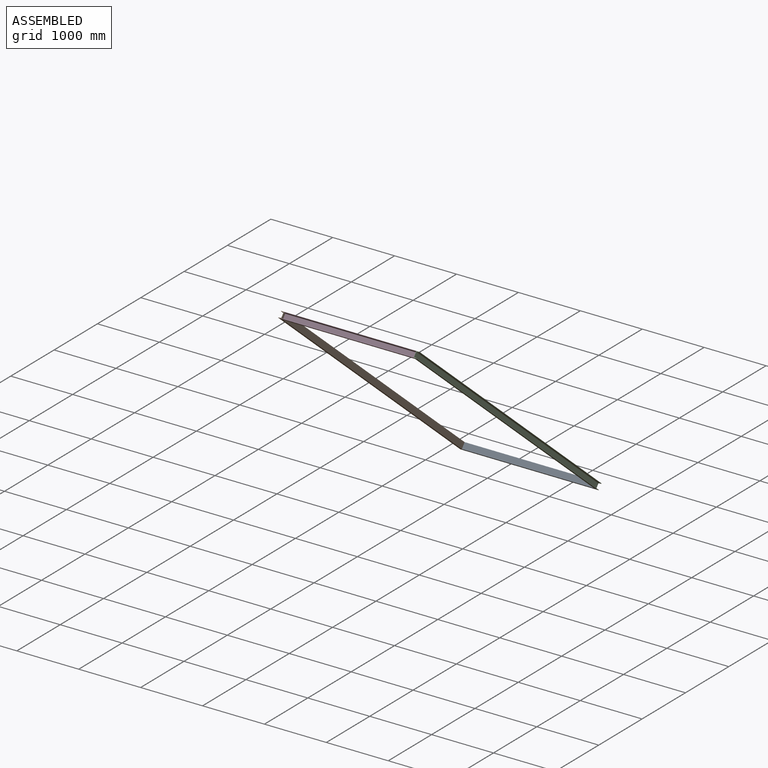
[diagram: assembled view]
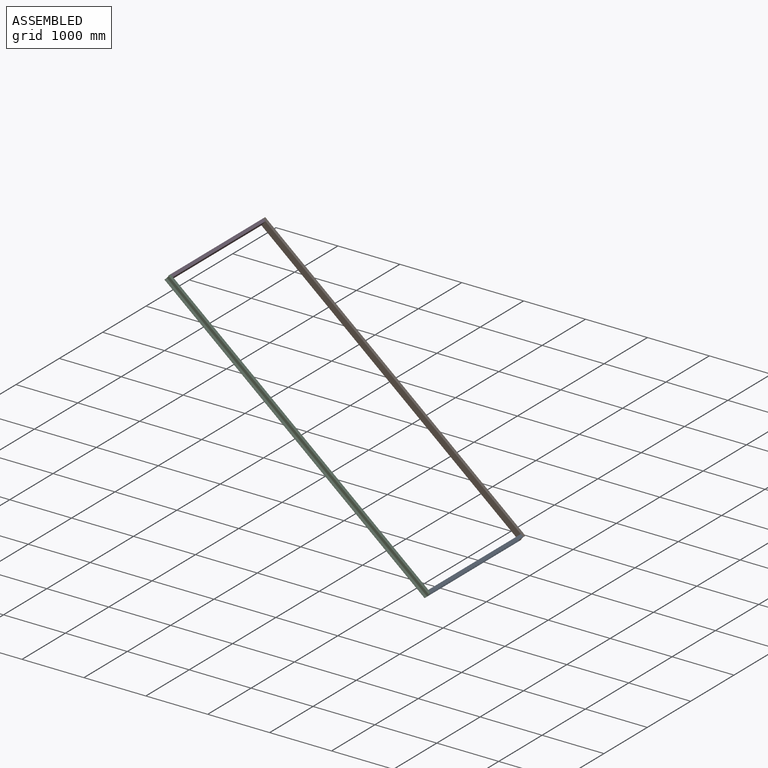
[diagram: assembled view, second angle]
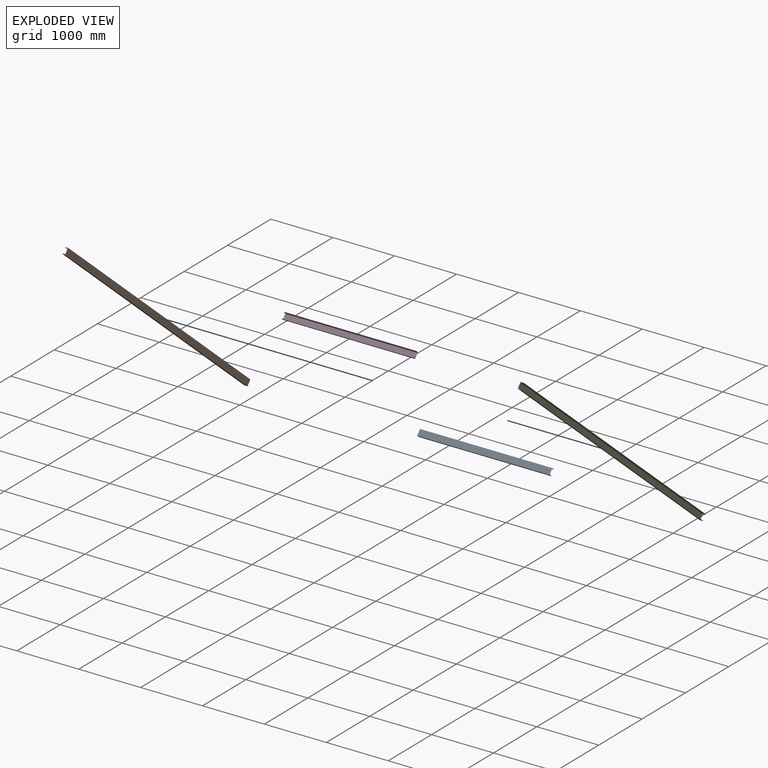
[diagram: exploded view]
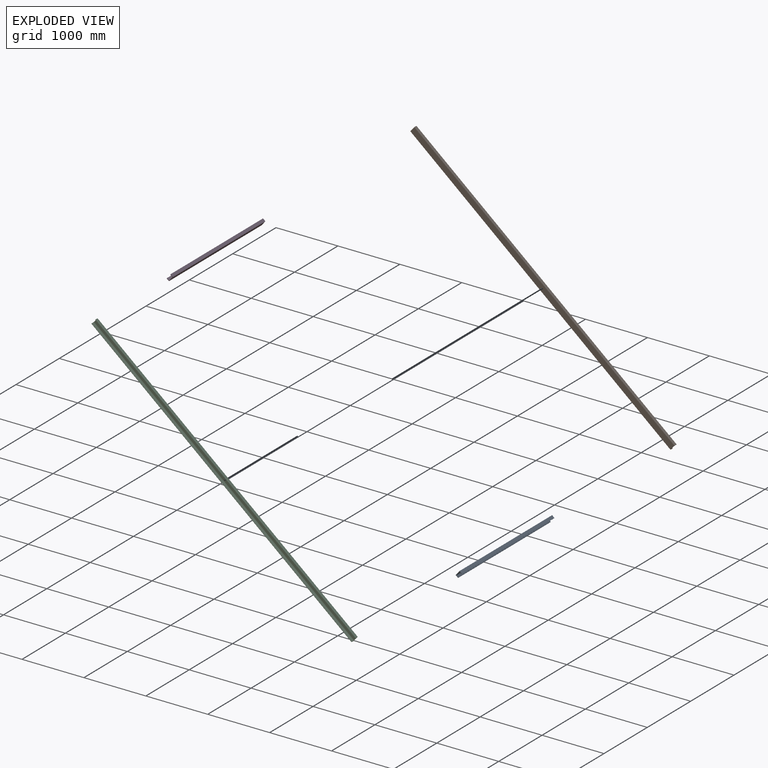
[diagram: exploded view, second angle]
ASSEMBLY  parts=4 mates=5
PART A: 14 faces, bbox 2133.6x50x100 mm
  f0: plane 100x50mm, normal (-1,0,0), area 1345.4mm2, adj f2,f3,f4,f5,f6,f7,f8,f9
  f1: plane 100x50mm, normal (1,0,0), area 1345.4mm2, adj f2,f3,f4,f5,f6,f7,f8,f9
  f2: plane 2133.6x50mm, normal (0,0,1), area 106680mm2, adj f0,f1,f3,f13
  f3: plane 2133.6x2.35mm, normal (0,-1,0), area 5004.6mm2, adj f0,f1,f2,f4
  f4: cylinder r=4.5mm len=2133.6mm, axis (1,0,0), area 14315mm2, adj f0,f1,f3,f5
  f5: plane 2133.6x32.04mm, normal (0,-0.08,-1), area 68571.9mm2, adj f0,f1,f4,f6
  f6: cylinder r=8.5mm len=2133.6mm, axis (1,0,0), area 27039.8mm2, adj f0,f1,f5,f7
  f7: plane 2133.6x64.27mm, normal (0,-1,0), area 137117.1mm2, adj f0,f1,f6,f8
  f8: cylinder r=8.5mm len=2133.6mm, axis (1,0,0), area 27039.8mm2, adj f0,f1,f7,f9
  f9: plane 2133.6x32.04mm, normal (0,-0.08,1), area 68571.9mm2, adj f0,f1,f8,f10
  f10: cylinder r=4.5mm len=2133.6mm, axis (1,0,0), area 14315mm2, adj f0,f1,f9,f11
  f11: plane 2133.6x2.35mm, normal (0,-1,0), area 5004.6mm2, adj f0,f1,f10,f12
  f12: plane 2133.6x50mm, normal (0,0,-1), area 106680mm2, adj f0,f1,f11,f13
  f13: plane 2133.6x100mm, normal (0,1,0), area 213360mm2, adj f0,f1,f2,f12
PART B: 14 faces, bbox 50x5486.4x100 mm
  f0: plane 100x50mm, normal (0,-1,0), area 1345.4mm2, adj f2,f3,f4,f5,f6,f7,f8,f9
  f1: plane 100x50mm, normal (0,1,0), area 1345.4mm2, adj f2,f3,f4,f5,f6,f7,f8,f9
  f2: plane 5486.4x50mm, normal (0,0,-1), area 274320mm2, adj f0,f1,f3,f13
  f3: plane 5486.4x2.35mm, normal (-1,0,0), area 12868.9mm2, adj f0,f1,f2,f4
  f4: cylinder r=4.5mm len=5486.4mm, axis (0,1,0), area 36810mm2, adj f0,f1,f3,f5
  f5: plane 5486.4x32.04mm, normal (-0.08,0,1), area 176327.7mm2, adj f0,f1,f4,f6
  f6: cylinder r=8.5mm len=5486.4mm, axis (0,1,0), area 69530.9mm2, adj f0,f1,f5,f7
  f7: plane 5486.4x64.27mm, normal (-1,0,0), area 352586.8mm2, adj f0,f1,f6,f8
  f8: cylinder r=8.5mm len=5486.4mm, axis (0,1,0), area 69530.9mm2, adj f0,f1,f7,f9
  f9: plane 5486.4x32.04mm, normal (-0.08,0,-1), area 176327.7mm2, adj f0,f1,f8,f10
  f10: cylinder r=4.5mm len=5486.4mm, axis (0,1,0), area 36810mm2, adj f0,f1,f9,f11
  f11: plane 5486.4x2.35mm, normal (-1,0,0), area 12868.9mm2, adj f0,f1,f10,f12
  f12: plane 5486.4x50mm, normal (0,0,1), area 274320mm2, adj f0,f1,f11,f13
  f13: plane 5486.4x100mm, normal (1,0,0), area 548640mm2, adj f0,f1,f2,f12
PART C: same geometry as B
PART D: same geometry as A
PLACE A rot(axis=(1,0,0),140deg) t=(-1614.64,-557.95,33.17)mm
PLACE B rot(axis=(-1,0,0),40deg) t=(-1649.28,-4762.08,3560.85)mm
PLACE C rot(axis=(0,-0.94,0.34),180deg) t=(484.32,-4826.36,3484.24)mm
PLACE D rot(axis=(-1,0,0),40deg) t=(-1614.64,-4827.66,3485.33)mm
MATE fastened A.f0 <-> B.f13  axis (-1,0,0) through (-1649.28,-623.53,-42.35)mm
MATE fastened A.f1 <-> C.f13  axis (1,0,0) through (484.32,-623.53,-42.35)mm
MATE fastened B.f13 <-> A.f0  axis (1,0,0) through (-1649.28,-623.53,-42.35)mm
MATE fastened A.f1 <-> C.f13  axis (1,0,0) through (484.32,-559.25,34.26)mm
MATE fastened B.f13 <-> D.f0  axis (1,0,0) through (-1649.28,-4762.08,3560.85)mm
